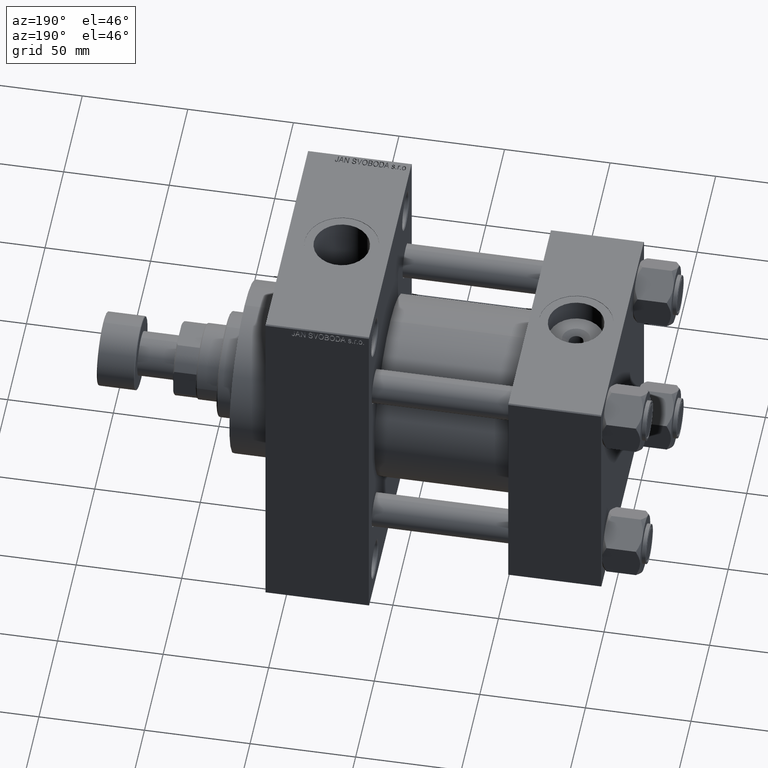
[diagram: clean part render]
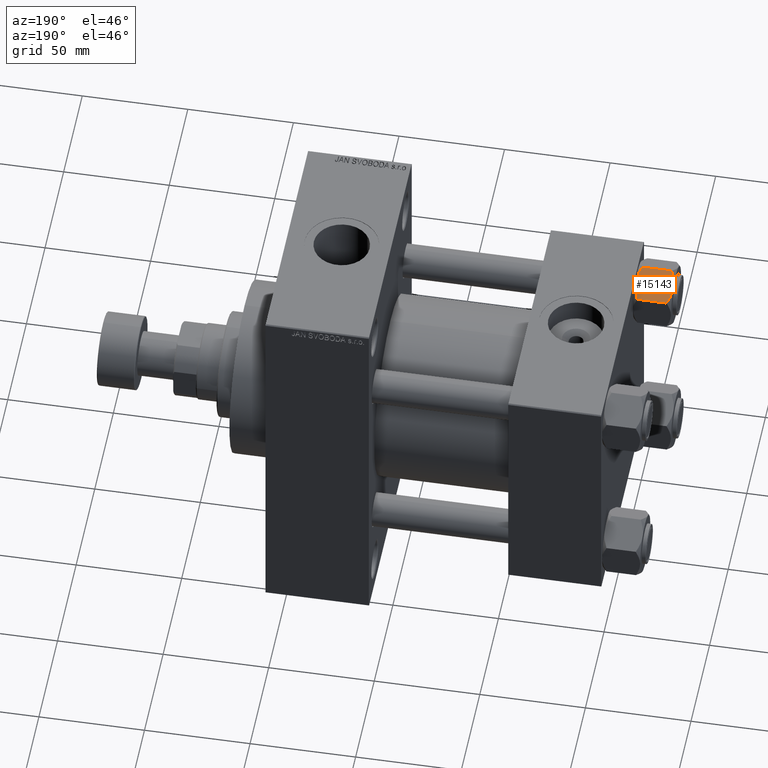
[diagram: same view with one face highlighted and labeled with its STEP entity id]
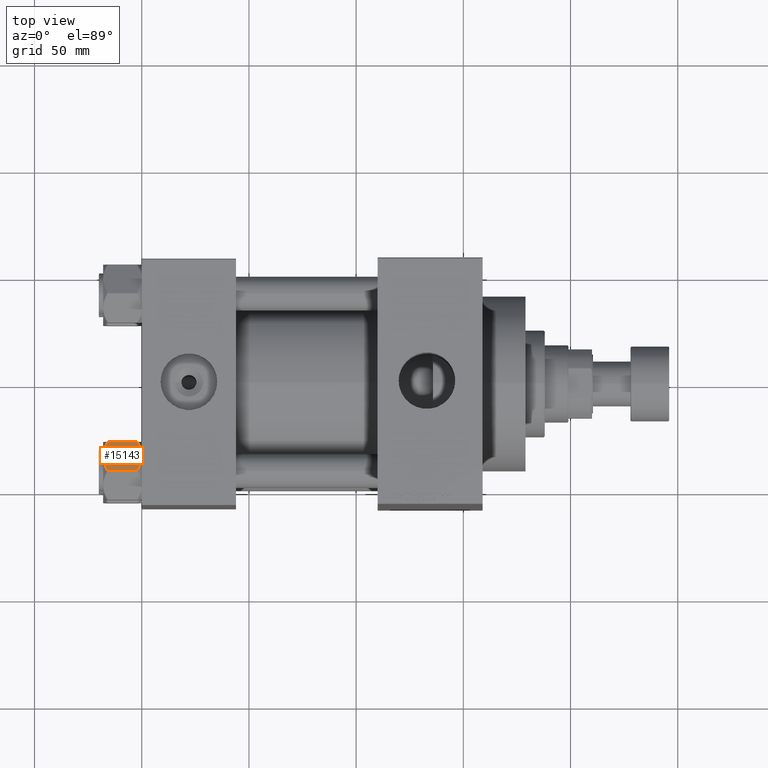
[diagram: same view with one face highlighted and labeled with its STEP entity id]
A machine part, auxiliary view. The second image highlights one B-rep face of the part: STEP entity #15143.
A second angle (top view) of the same face is appended — the face is thin or edge-on in the first view.
In plain terms, the highlighted planar face has unit normal (0, -0.5, -0.866).
Its self-contained STEP definition (entity closure, byte-faithful):
#155 = B_SPLINE_CURVE_WITH_KNOTS ( 'NONE', 3,
 ( #2112, #13296, #16230, #12816, #27891, #31071, #31786, #46646 ),
 .UNSPECIFIED., .F., .F.,
 ( 4, 2, 2, 4 ),
 ( 0.007890825462474455182, 0.01181022244528557447, 0.01376992093669113237, 0.01572961942809669028 ),
 .UNSPECIFIED. ) ;
#1609 = CARTESIAN_POINT ( 'NONE',  ( -11.71500000000000874, -6.763658403556465082, 0.000000000000000000 ) ) ;
#2112 = CARTESIAN_POINT ( 'NONE',  ( -11.71500000000000874, -6.763658403556465082, 0.000000000000000000 ) ) ;
#2203 = B_SPLINE_CURVE_WITH_KNOTS ( 'NONE', 3,
 ( #12357, #35233, #34272, #8954, #45954, #15782, #30627, #12602 ),
 .UNSPECIFIED., .F., .F.,
 ( 4, 2, 2, 4 ),
 ( 4.472842641823326050E-07, 0.003945636373369307455, 0.005918230917921868742, 0.007890825462474429161 ),
 .UNSPECIFIED. ) ;
#2430 = LINE ( 'NONE', #28444, #6315 ) ;
#2815 = EDGE_CURVE ( 'NONE', #41063, #46608, #9769, .T. ) ;
#2891 = ORIENTED_EDGE ( 'NONE', *, *, #2815, .F. ) ;
#3059 = CARTESIAN_POINT ( 'NONE',  ( -13.04337073483128329, -4.462852799541076720, -0.2430846701012917832 ) ) ;
#3243 = ORIENTED_EDGE ( 'NONE', *, *, #17864, .F. ) ;
#3300 = CARTESIAN_POINT ( 'NONE',  ( -12.38621571200405391, -5.601078687526923616, -0.05089381635300848500 ) ) ;
#3992 = VECTOR ( 'NONE', #44363, 1000.000000000000114 ) ;
#4515 = VERTEX_POINT ( 'NONE', #47498 ) ;
#4707 = EDGE_CURVE ( 'NONE', #16987, #30438, #2430, .T. ) ;
#5532 = VERTEX_POINT ( 'NONE', #45770 ) ;
#5549 = ORIENTED_EDGE ( 'NONE', *, *, #43464, .F. ) ;
#5889 = VECTOR ( 'NONE', #40955, 1000.000000000000000 ) ;
#6134 = DIRECTION ( 'NONE',  ( 0.4999999999999995559, -0.8660254037844389297, 0.000000000000000000 ) ) ;
#6212 = VERTEX_POINT ( 'NONE', #1609 ) ;
#6315 = VECTOR ( 'NONE', #24082, 1000.000000000000114 ) ;
#6782 = VECTOR ( 'NONE', #43117, 1000.000000000000000 ) ;
#8135 = FACE_OUTER_BOUND ( 'NONE', #43317, .T. ) ;
#8954 = CARTESIAN_POINT ( 'NONE',  ( -10.06459418565412456, -9.622245127110604201, -17.61639331488794014 ) ) ;
#9769 = LINE ( 'NONE', #39454, #17178 ) ;
#10140 = DIRECTION ( 'NONE',  ( -0.4999999999999995559, 0.8660254037844389297, 0.000000000000000000 ) ) ;
#11005 = EDGE_CURVE ( 'NONE', #6212, #5532, #155, .T. ) ;
#11023 = CARTESIAN_POINT ( 'NONE',  ( -7.810000000000004050, -13.52731680711293194, -1.999999999999998224 ) ) ;
#11945 = CARTESIAN_POINT ( 'NONE',  ( -15.52647173767732980, -0.1619957022864866314, -16.00000000000000000 ) ) ;
#12357 = CARTESIAN_POINT ( 'NONE',  ( -7.903528262322677023, -13.36532110482643176, -16.00000000000000000 ) ) ;
#12602 = CARTESIAN_POINT ( 'NONE',  ( -11.71500000000000874, -6.763658403556465082, -18.00000000000000000 ) ) ;
#12816 = CARTESIAN_POINT ( 'NONE',  ( -9.439480280627263298, -10.70497417113492133, -0.7317196846281108780 ) ) ;
#13296 = CARTESIAN_POINT ( 'NONE',  ( -11.05297796109638320, -7.910314210667880985, 6.220609964635581690E-15 ) ) ;
#13666 = ORIENTED_EDGE ( 'NONE', *, *, #45724, .F. ) ;
#14825 = ORIENTED_EDGE ( 'NONE', *, *, #41376, .F. ) ;
#15143 = ADVANCED_FACE ( 'NONE', ( #8135 ), #40986, .F. ) ;
#15368 = CARTESIAN_POINT ( 'NONE',  ( -14.30591678195076533, -2.276058899034883343, -17.05261278537718894 ) ) ;
#15710 = ORIENTED_EDGE ( 'NONE', *, *, #20053, .F. ) ;
#15782 = CARTESIAN_POINT ( 'NONE',  ( -11.04378428799594936, -7.926238119586001218, -17.94910618364699317 ) ) ;
#16132 = ORIENTED_EDGE ( 'NONE', *, *, #11005, .F. ) ;
#16230 = CARTESIAN_POINT ( 'NONE',  ( -10.40215497533437450, -9.037572688741349225, -0.1971866459924505599 ) ) ;
#16987 = VERTEX_POINT ( 'NONE', #18265 ) ;
#17178 = VECTOR ( 'NONE', #6134, 1000.000000000000114 ) ;
#17329 = LINE ( 'NONE', #47259, #6782 ) ;
#17864 = EDGE_CURVE ( 'NONE', #25891, #41063, #36817, .T. ) ;
#18140 = CARTESIAN_POINT ( 'NONE',  ( -12.04818928091285635, -6.186557640478057785, 6.657678965418800665E-15 ) ) ;
#18265 = CARTESIAN_POINT ( 'NONE',  ( -7.810000000000004050, -13.52731680711293194, -16.00000000000000000 ) ) ;
#18410 = ORIENTED_EDGE ( 'NONE', *, *, #4707, .F. ) ;
#18769 = CARTESIAN_POINT ( 'NONE',  ( -13.99051971937274530, -2.822342635977994618, -17.26828031537188934 ) ) ;
#18837 = DIRECTION ( 'NONE',  ( 0.8660254037844389297, 0.4999999999999995559, 0.000000000000000000 ) ) ;
#20053 = EDGE_CURVE ( 'NONE', #46608, #6212, #27972, .T. ) ;
#22312 = EDGE_CURVE ( 'NONE', #30438, #4515, #2203, .T. ) ;
#22457 = CARTESIAN_POINT ( 'NONE',  ( -15.61999999999999922, 5.965997004755138422E-15, -18.00000000000000000 ) ) ;
#22511 = CARTESIAN_POINT ( 'NONE',  ( -14.92760668674625002, -1.199260397376435083, -1.411989271640064603 ) ) ;
#22870 = AXIS2_PLACEMENT_3D ( 'NONE', #37578, #18837, #22969 ) ;
#22969 = DIRECTION ( 'NONE',  ( -0.4999999999999995559, 0.8660254037844389297, 0.000000000000000000 ) ) ;
#24082 = DIRECTION ( 'NONE',  ( -0.4999999999999995559, 0.8660254037844389297, 0.000000000000000000 ) ) ;
#24498 = CARTESIAN_POINT ( 'NONE',  ( -7.810000000000004050, -13.52731680711293194, -16.00000000000000000 ) ) ;
#25154 = ORIENTED_EDGE ( 'NONE', *, *, #22312, .F. ) ;
#25671 = CARTESIAN_POINT ( 'NONE',  ( -14.31545111198821552, -2.259544954993879973, -0.9142282604026908954 ) ) ;
#25891 = VERTEX_POINT ( 'NONE', #40677 ) ;
#26093 = LINE ( 'NONE', #11023, #3992 ) ;
#26448 = VECTOR ( 'NONE', #10140, 1000.000000000000114 ) ;
#26780 = CARTESIAN_POINT ( 'NONE',  ( -11.71500000000000874, -6.763658403556465082, -18.00000000000000000 ) ) ;
#27194 = CARTESIAN_POINT ( 'NONE',  ( -7.903528262322677023, -13.36532110482643176, -16.00000000000000000 ) ) ;
#27891 = CARTESIAN_POINT ( 'NONE',  ( -9.124083218049239719, -11.25125790807803483, -0.9473872146228100588 ) ) ;
#27972 = B_SPLINE_CURVE_WITH_KNOTS ( 'NONE', 3,
 ( #28841, #22511, #25671, #37356, #3059, #3300, #18140, #43690 ),
 .UNSPECIFIED., .F., .F.,
 ( 4, 2, 2, 4 ),
 ( 4.472842642040518533E-07, 0.003945636373369329139, 0.005918230917921892160, 0.007890825462474455182 ),
 .UNSPECIFIED. ) ;
#28444 = CARTESIAN_POINT ( 'NONE',  ( -7.810000000000004050, -13.52731680711293194, -16.00000000000000000 ) ) ;
#28841 = CARTESIAN_POINT ( 'NONE',  ( -15.52647173767732980, -0.1619957022864866314, -2.000000000000000000 ) ) ;
#28932 = ORIENTED_EDGE ( 'NONE', *, *, #31275, .T. ) ;
#29614 = CARTESIAN_POINT ( 'NONE',  ( -7.810000000000004050, -13.52731680711293194, -1.999999999999998224 ) ) ;
#29964 = CARTESIAN_POINT ( 'NONE',  ( -13.02784502466562699, -4.489744118371573833, -17.80281335400755083 ) ) ;
#30438 = VERTEX_POINT ( 'NONE', #27194 ) ;
#30627 = CARTESIAN_POINT ( 'NONE',  ( -11.38181071908714692, -7.340759166634862609, -18.00000000000000711 ) ) ;
#30682 = CARTESIAN_POINT ( 'NONE',  ( -12.37702203890362362, -5.617002596445044738, -18.00000000000000355 ) ) ;
#31071 = CARTESIAN_POINT ( 'NONE',  ( -8.506059550806616798, -12.32170630002230460, -1.434462921875001351 ) ) ;
#31275 = EDGE_CURVE ( 'NONE', #16987, #33024, #17329, .T. ) ;
#31786 = CARTESIAN_POINT ( 'NONE',  ( -8.202637790192644829, -12.84724820552771085, -1.706311779141443274 ) ) ;
#33024 = VERTEX_POINT ( 'NONE', #29614 ) ;
#34272 = CARTESIAN_POINT ( 'NONE',  ( -9.114548888011784200, -11.26777185211903998, -17.08577173959730544 ) ) ;
#34810 = CARTESIAN_POINT ( 'NONE',  ( -15.52647173767732980, -0.1619957022864866314, -16.00000000000000000 ) ) ;
#35233 = CARTESIAN_POINT ( 'NONE',  ( -8.502393313253756801, -12.32805640973648842, -16.58801072835994006 ) ) ;
#35281 = CARTESIAN_POINT ( 'NONE',  ( -15.61999999999999922, 5.965997004755138422E-15, -1.999999999999998224 ) ) ;
#35739 = B_SPLINE_CURVE_WITH_KNOTS ( 'NONE', 3,
 ( #26780, #30682, #29964, #18769, #15368, #45292, #44816, #11945 ),
 .UNSPECIFIED., .F., .F.,
 ( 4, 2, 2, 4 ),
 ( 0.007890825462474429161, 0.01181022244528554671, 0.01376992093669110635, 0.01572961942809666600 ),
 .UNSPECIFIED. ) ;
#36049 = VERTEX_POINT ( 'NONE', #34810 ) ;
#36817 = LINE ( 'NONE', #22457, #5889 ) ;
#37356 = CARTESIAN_POINT ( 'NONE',  ( -13.36540581434588226, -3.905071680002311751, -0.3836066851120544796 ) ) ;
#37578 = CARTESIAN_POINT ( 'NONE',  ( -7.810000000000004050, -13.52731680711293194, -18.00000000000000000 ) ) ;
#39454 = CARTESIAN_POINT ( 'NONE',  ( -7.810000000000004050, -13.52731680711293194, -1.999999999999998224 ) ) ;
#40677 = CARTESIAN_POINT ( 'NONE',  ( -15.61999999999999922, 5.965997004755138422E-15, -16.00000000000000000 ) ) ;
#40955 = DIRECTION ( 'NONE',  ( -0.000000000000000000, -0.000000000000000000, 1.000000000000000000 ) ) ;
#40986 = PLANE ( 'NONE',  #22870 ) ;
#41063 = VERTEX_POINT ( 'NONE', #35281 ) ;
#41376 = EDGE_CURVE ( 'NONE', #36049, #25891, #42760, .T. ) ;
#42760 = LINE ( 'NONE', #24498, #26448 ) ;
#43117 = DIRECTION ( 'NONE',  ( -0.000000000000000000, -0.000000000000000000, 1.000000000000000000 ) ) ;
#43317 = EDGE_LOOP ( 'NONE', ( #18410, #28932, #5549, #16132, #15710, #2891, #3243, #14825, #13666, #25154 ) ) ;
#43464 = EDGE_CURVE ( 'NONE', #5532, #33024, #26093, .T. ) ;
#43690 = CARTESIAN_POINT ( 'NONE',  ( -11.71500000000000874, -6.763658403556465082, 0.000000000000000000 ) ) ;
#44363 = DIRECTION ( 'NONE',  ( 0.4999999999999995559, -0.8660254037844389297, 0.000000000000000000 ) ) ;
#44816 = CARTESIAN_POINT ( 'NONE',  ( -15.22736220980736199, -0.6800686015852087651, -16.29368822085855584 ) ) ;
#45292 = CARTESIAN_POINT ( 'NONE',  ( -14.92394044919338825, -1.205610507090617345, -16.56553707812499709 ) ) ;
#45651 = CARTESIAN_POINT ( 'NONE',  ( -15.52647173767732980, -0.1619957022864866314, -2.000000000000000000 ) ) ;
#45724 = EDGE_CURVE ( 'NONE', #4515, #36049, #35739, .T. ) ;
#45770 = CARTESIAN_POINT ( 'NONE',  ( -7.903528262322677023, -13.36532110482643176, -2.000000000000000000 ) ) ;
#45954 = CARTESIAN_POINT ( 'NONE',  ( -10.38662926516871998, -9.064464007571846338, -17.75691532989870325 ) ) ;
#46608 = VERTEX_POINT ( 'NONE', #45651 ) ;
#46646 = CARTESIAN_POINT ( 'NONE',  ( -7.903528262322677023, -13.36532110482643176, -2.000000000000000000 ) ) ;
#47259 = CARTESIAN_POINT ( 'NONE',  ( -7.810000000000004050, -13.52731680711293194, -18.00000000000000000 ) ) ;
#47498 = CARTESIAN_POINT ( 'NONE',  ( -11.71500000000000874, -6.763658403556465082, -18.00000000000000000 ) ) ;